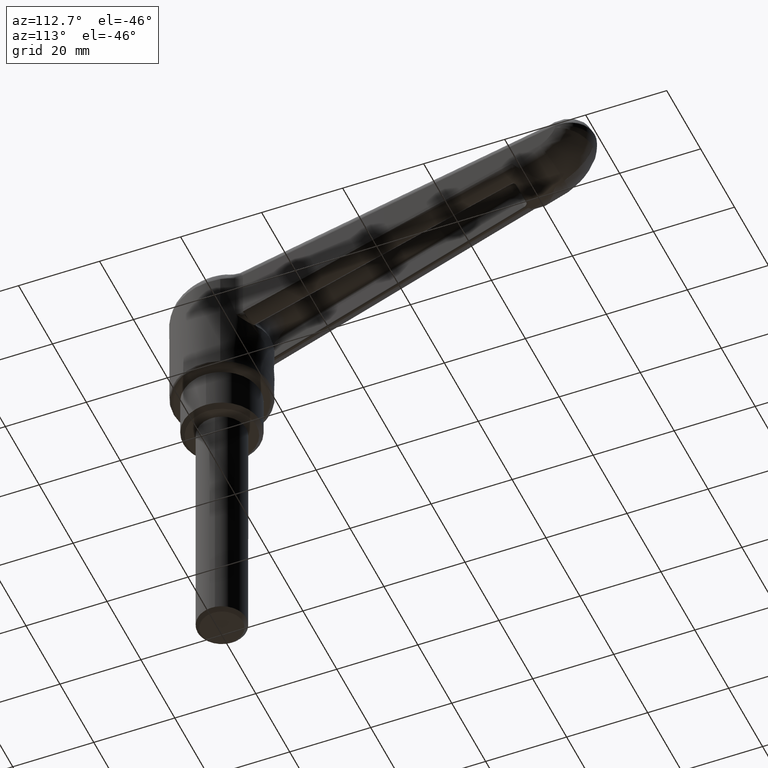
[diagram: clean part render]
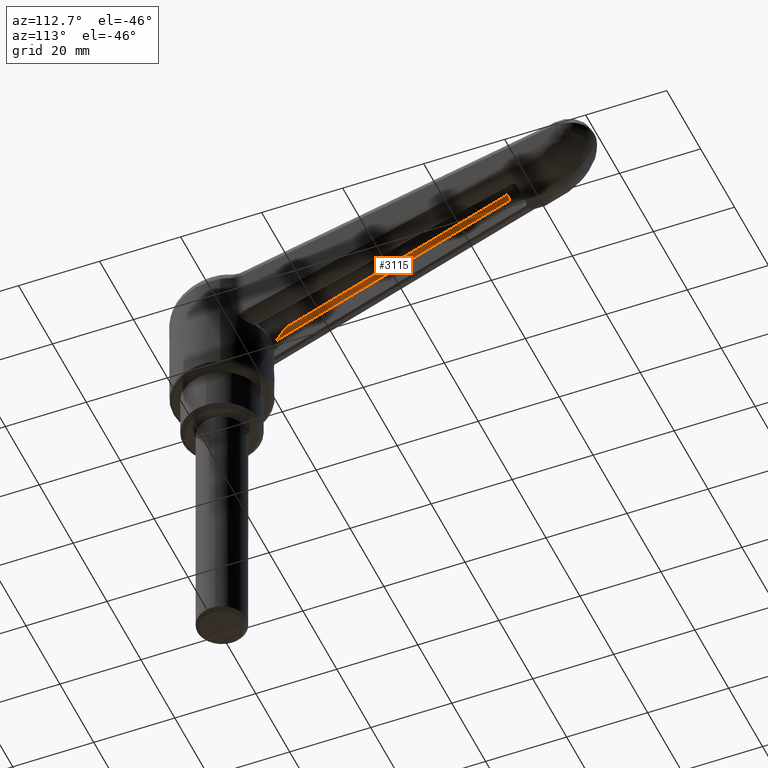
[diagram: same view with one face highlighted and labeled with its STEP entity id]
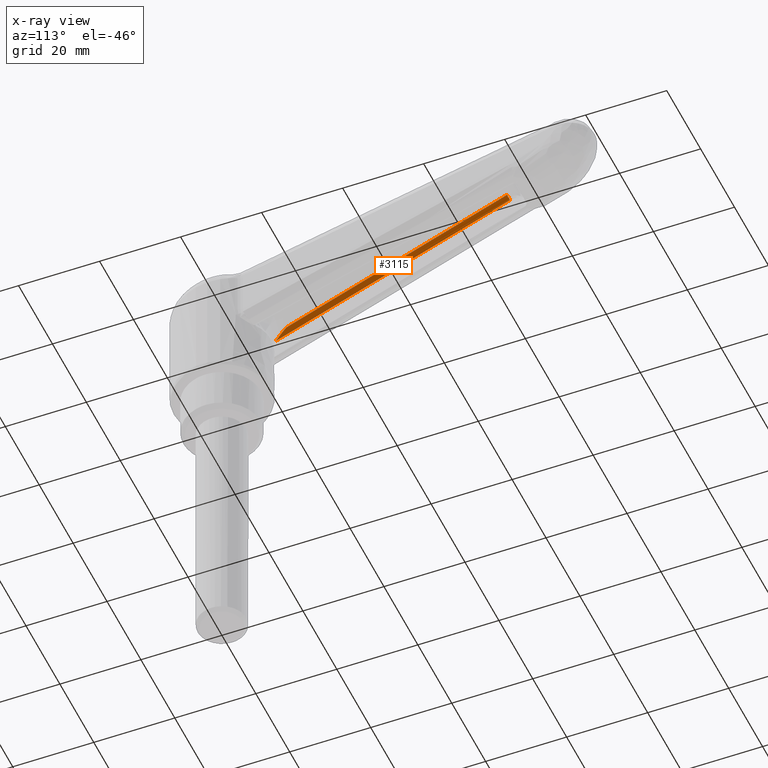
[diagram: x-ray of the same camera — body ghosted, the highlighted face saturated]
A machine part, auxiliary view. The second image highlights one B-rep face of the part: STEP entity #3115.
The next image is the same camera in x-ray: the body ghosted, the highlighted face saturated — about 0% of this face is hidden behind the body in this view.
In plain terms, the highlighted face is a freeform B-spline surface patch.
Its self-contained STEP definition (entity closure, byte-faithful):
#3044=CARTESIAN_POINT('',(70.964474268465082,3.912338903613545,53.668857904275058));
#3045=CARTESIAN_POINT('',(9.561468472225753,5.554029347984856,31.319990582587621));
#3046=CARTESIAN_POINT('',(70.592026890083361,3.940897018150602,54.694246430121098));
#3047=CARTESIAN_POINT('',(9.189021093844001,5.582587462521897,32.345379108433647));
#3048=CARTESIAN_POINT('',(70.589104949578484,2.851967645579116,54.622284437925323));
#3049=CARTESIAN_POINT('',(9.186099153339116,4.493658089950404,32.273417116237852));
#3057=(BOUNDED_SURFACE()B_SPLINE_SURFACE(1,2,((#3044,#3046,#3048),(#3045,#3047,#3049)),.UNSPECIFIED.,.F.,.F.,.U.)B_SPLINE_SURFACE_WITH_KNOTS((2,2),(3,3),(0.0,65.364333844157983),(0.0,1.0),.UNSPECIFIED.)GEOMETRIC_REPRESENTATION_ITEM()RATIONAL_B_SPLINE_SURFACE(((1.0,0.675590207615660,1.0),(1.0,0.675590207615660,1.0)))REPRESENTATION_ITEM('')SURFACE());
#3058=CARTESIAN_POINT('',(11.050157803588380,5.514330684559640,31.889686136176412));
#3059=VERTEX_POINT('',#3058);
#3060=CARTESIAN_POINT('',(14.073639295410221,4.424033997806915,34.054321225824602));
#3061=VERTEX_POINT('',#3060);
#3062=CARTESIAN_POINT('',(11.050157803588380,5.514330684559640,31.889686136176412));
#3063=CARTESIAN_POINT('',(11.147796437983260,5.510869328953130,32.024242531266012));
#3064=CARTESIAN_POINT('',(11.252082442110931,5.494829136385318,32.150438654111298));
#3065=CARTESIAN_POINT('',(11.470391468260789,5.448131882506268,32.391297806325291));
#3066=CARTESIAN_POINT('',(11.584481798969270,5.417244465885960,32.505856903232328));
#3067=CARTESIAN_POINT('',(11.761886702112420,5.363017849880898,32.670553483479793));
#3068=CARTESIAN_POINT('',(11.821821347803670,5.343676983438054,32.724007210783853));
#3069=CARTESIAN_POINT('',(11.942703232625011,5.303030793844325,32.827890790833308));
#3070=CARTESIAN_POINT('',(12.003730814322770,5.281699562513897,32.878394015844300));
#3071=CARTESIAN_POINT('',(12.188501636339669,5.215135793457138,33.025954032495633));
#3072=CARTESIAN_POINT('',(12.313925727941390,5.167353541232676,33.119083442713247));
#3073=CARTESIAN_POINT('',(12.696685620775060,5.016288864073278,33.384531472863493));
#3074=CARTESIAN_POINT('',(12.960428510009001,4.905372110197853,33.543075923803890));
#3075=CARTESIAN_POINT('',(13.369738931785580,4.729644168253148,33.755446003490768));
#3076=CARTESIAN_POINT('',(13.508398388655349,4.669509338054818,33.821874647656649));
#3077=CARTESIAN_POINT('',(13.718457471363600,4.578231882128990,33.914317064252067));
#3078=CARTESIAN_POINT('',(13.824104823296230,4.532280996246117,33.958787494216402));
#3079=CARTESIAN_POINT('',(13.930732206842739,4.485975800416473,34.000622722281392));
#3080=CARTESIAN_POINT('',(14.002041845152860,4.455039706148301,34.027924043334082));
#3081=CARTESIAN_POINT('',(14.037904646191061,4.439494502571352,34.041314876642907));
#3082=CARTESIAN_POINT('',(14.073639295410221,4.424033997806915,34.054321225824602));
#3083=B_SPLINE_CURVE_WITH_KNOTS('',3,(#3062,#3063,#3064,#3065,#3066,#3067,#3068,#3069,#3070,#3071,#3072,#3073,#3074,#3075,#3076,#3077,#3078,#3079,#3080,#3081,#3082),.UNSPECIFIED.,.F.,.U.,(4,2,2,2,2,2,2,2,1,2,4),(0.0,0.125000000000004,0.250000000000007,0.312500000000007,0.375000000000007,0.500000000000006,0.750000000000006,0.875000000000004,0.937500000000004,0.968750000000002,1.0),.UNSPECIFIED.);
#3084=EDGE_CURVE('',#3059,#3061,#3083,.T.);
#3085=ORIENTED_EDGE('',*,*,#3084,.F.);
#3086=CARTESIAN_POINT('',(69.494422689951293,3.951746085514970,53.161659791571203));
#3087=VERTEX_POINT('',#3086);
#3088=CARTESIAN_POINT('',(69.494422689951293,3.951746085514970,53.161659791571203));
#3089=CARTESIAN_POINT('',(11.050157803588380,5.514330684559640,31.889686136176412));
#3090=QUASI_UNIFORM_CURVE('',1,(#3088,#3089),.UNSPECIFIED.,.F.,.U.);
#3091=EDGE_CURVE('',#3087,#3059,#3090,.T.);
#3092=ORIENTED_EDGE('',*,*,#3091,.F.);
#3093=CARTESIAN_POINT('',(69.128801216842504,2.952061541936170,54.092762230474293));
#3094=VERTEX_POINT('',#3093);
#3095=CARTESIAN_POINT('',(69.494422689951236,3.951746085514971,53.161659791571203));
#3096=CARTESIAN_POINT('',(69.152402534228543,3.951746085514972,54.101352407844949));
#3097=CARTESIAN_POINT('',(69.128801216842504,2.952061541936155,54.092762230474356));
#3105=(BOUNDED_CURVE()B_SPLINE_CURVE(2,(#3095,#3096,#3097),.UNSPECIFIED.,.F.,.U.)CURVE()GEOMETRIC_REPRESENTATION_ITEM()QUASI_UNIFORM_CURVE()RATIONAL_B_SPLINE_CURVE((1.0,0.707106781186548,1.0))REPRESENTATION_ITEM(''));
#3106=EDGE_CURVE('',#3087,#3094,#3105,.T.);
#3107=ORIENTED_EDGE('',*,*,#3106,.T.);
#3108=CARTESIAN_POINT('',(14.073639295410221,4.424033997806915,34.054321225824602));
#3109=CARTESIAN_POINT('',(69.128801216842504,2.952061541936170,54.092762230474293));
#3110=QUASI_UNIFORM_CURVE('',1,(#3108,#3109),.UNSPECIFIED.,.F.,.U.);
#3111=EDGE_CURVE('',#3061,#3094,#3110,.T.);
#3112=ORIENTED_EDGE('',*,*,#3111,.F.);
#3113=EDGE_LOOP('',(#3085,#3092,#3107,#3112));
#3114=FACE_OUTER_BOUND('',#3113,.T.);
#3115=ADVANCED_FACE('',(#3114),#3057,.F.);